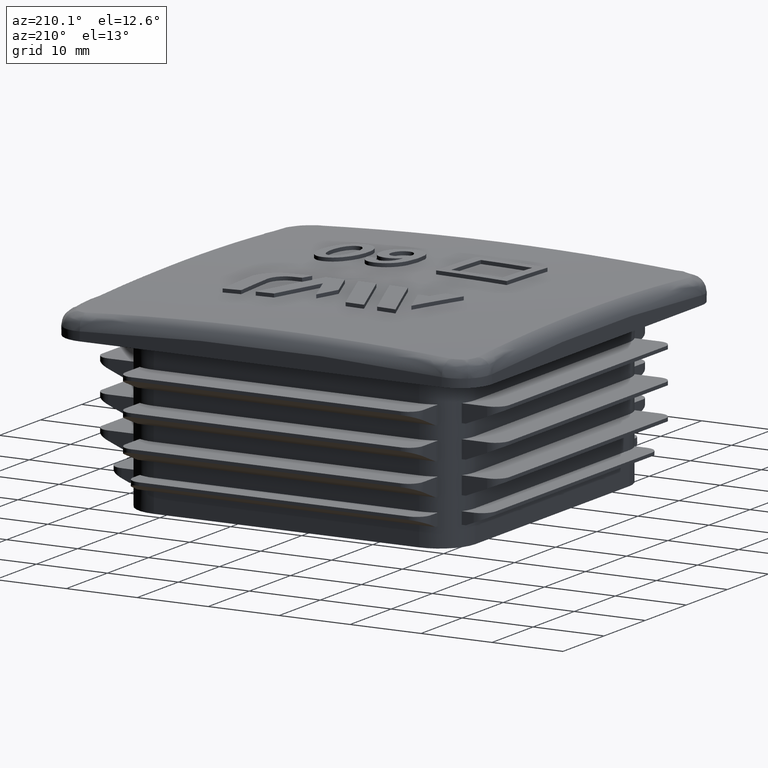
[diagram: clean part render]
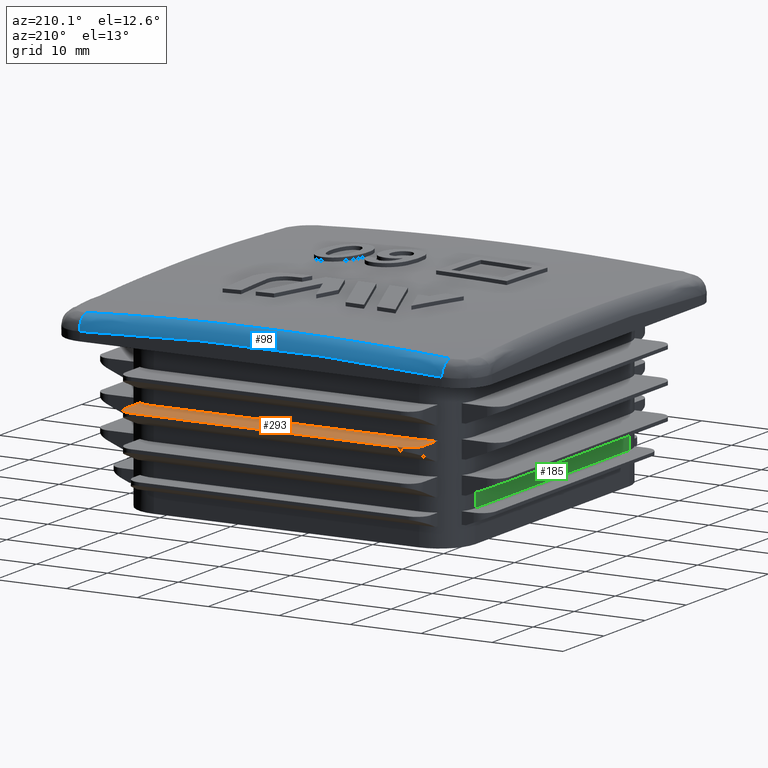
[diagram: same view with three faces highlighted in distinct colors, each labeled with its STEP entity id]
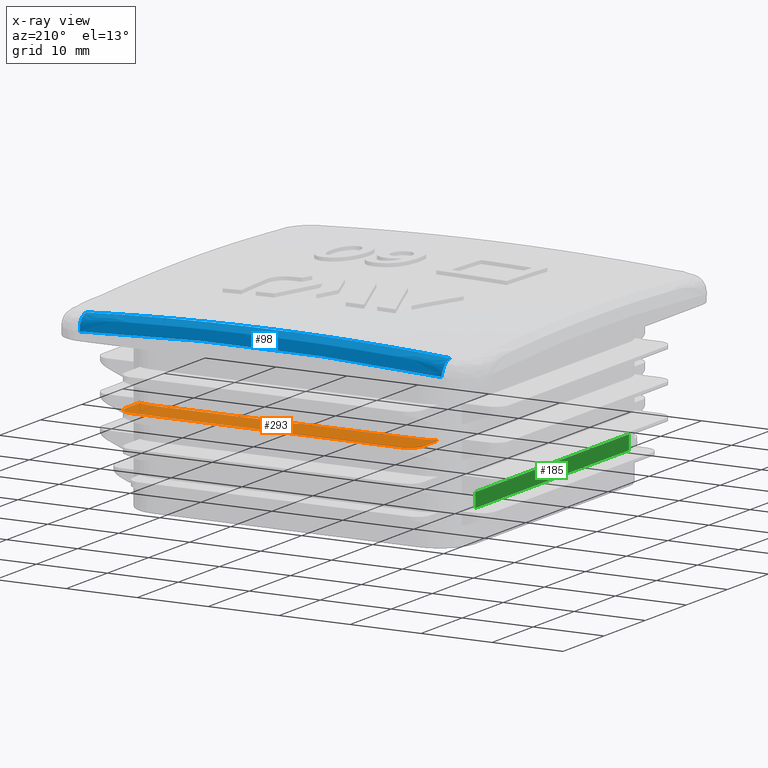
[diagram: x-ray of the same camera — body ghosted, the three highlighted faces saturated]
A machine part, auxiliary view with three faces highlighted in distinct colors.
The next image is the same camera in x-ray (body ghosted, the three faces saturated) — at least one of them is partly hidden behind the body in this view.
Their STEP definitions:

[orange] entity #293 — the highlighted planar face has unit normal (0, -0, -1).
#293 = ADVANCED_FACE( '', ( #812 ), #813, .F. );
#812 = FACE_OUTER_BOUND( '', #3512, .T. );
#813 = PLANE( '', #3513 );
#3512 = EDGE_LOOP( '', ( #5444, #5445, #5446, #5447, #5448, #5449, #5450, #5451 ) );
#3513 = AXIS2_PLACEMENT_3D( '', #5452, #5453, #5454 );
#5444 = ORIENTED_EDGE( '', *, *, #6381, .F. );
#5445 = ORIENTED_EDGE( '', *, *, #6400, .F. );
#5446 = ORIENTED_EDGE( '', *, *, #6235, .F. );
#5447 = ORIENTED_EDGE( '', *, *, #6585, .F. );
#5448 = ORIENTED_EDGE( '', *, *, #6586, .T. );
#5449 = ORIENTED_EDGE( '', *, *, #6583, .T. );
#5450 = ORIENTED_EDGE( '', *, *, #6587, .T. );
#5451 = ORIENTED_EDGE( '', *, *, #6588, .T. );
#5452 = CARTESIAN_POINT( '', ( 21.0000000000000, 28.7000000000000, 13.5000000000000 ) );
#5453 = DIRECTION( '', ( 3.69778549322349E-032, -6.12303176911189E-017, -1.00000000000000 ) );
#5454 = DIRECTION( '', ( 6.12303176911189E-017, 1.00000000000000, -6.12303176911189E-017 ) );
#6235 = EDGE_CURVE( '', #7184, #7186, #7187, .F. );
#6381 = EDGE_CURVE( '', #7444, #7446, #7447, .F. );
#6400 = EDGE_CURVE( '', #7186, #7444, #7471, .T. );
#6583 = EDGE_CURVE( '', #7750, #7748, #7751, .T. );
#6585 = EDGE_CURVE( '', #7753, #7184, #7754, .T. );
#6586 = EDGE_CURVE( '', #7753, #7750, #7755, .F. );
#6587 = EDGE_CURVE( '', #7748, #7756, #7757, .F. );
#6588 = EDGE_CURVE( '', #7756, #7446, #7758, .T. );
#7184 = VERTEX_POINT( '', #10660 );
#7186 = VERTEX_POINT( '', #10663 );
#7187 = CIRCLE( '', #10664, 5.00000000000000 );
#7444 = VERTEX_POINT( '', #11008 );
#7446 = VERTEX_POINT( '', #11011 );
#7447 = CIRCLE( '', #11012, 5.00000000000000 );
#7471 = LINE( '', #11051, #11052 );
#7748 = VERTEX_POINT( '', #11472 );
#7750 = VERTEX_POINT( '', #11475 );
#7751 = LINE( '', #11476, #11477 );
#7753 = VERTEX_POINT( '', #11480 );
#7754 = LINE( '', #11481, #11482 );
#7755 = CIRCLE( '', #11483, 2.00000000000000 );
#7756 = VERTEX_POINT( '', #11484 );
#7757 = CIRCLE( '', #11485, 2.00000000000000 );
#7758 = LINE( '', #11486, #11487 );
#10660 = CARTESIAN_POINT( '', ( 21.0000000000000, 23.1395945760846, 13.5000000000000 ) );
#10663 = CARTESIAN_POINT( '', ( 18.7000000000000, 23.7000000000000, 13.5000000000000 ) );
#10664 = AXIS2_PLACEMENT_3D( '', #12005, #12006, #12007 );
#11008 = CARTESIAN_POINT( '', ( -18.7000000000000, 23.7000000000000, 13.5000000000000 ) );
#11011 = CARTESIAN_POINT( '', ( -21.0000000000000, 23.1395945760846, 13.5000000000000 ) );
#11012 = AXIS2_PLACEMENT_3D( '', #12264, #12265, #12266 );
#11051 = CARTESIAN_POINT( '', ( 18.7000000000000, 23.7000000000000, 13.5000000000000 ) );
#11052 = VECTOR( '', #12291, 1000.00000000000 );
#11472 = CARTESIAN_POINT( '', ( -19.0000000000000, 28.7000000000000, 13.5000000000000 ) );
#11475 = CARTESIAN_POINT( '', ( 19.0000000000000, 28.7000000000000, 13.5000000000000 ) );
#11476 = CARTESIAN_POINT( '', ( 21.0000000000000, 28.7000000000000, 13.5000000000000 ) );
#11477 = VECTOR( '', #12550, 1000.00000000000 );
#11480 = CARTESIAN_POINT( '', ( 21.0000000000000, 26.7000000000000, 13.5000000000000 ) );
#11481 = CARTESIAN_POINT( '', ( 21.0000000000000, 28.7000000000000, 13.5000000000000 ) );
#11482 = VECTOR( '', #12552, 1000.00000000000 );
#11483 = AXIS2_PLACEMENT_3D( '', #12553, #12554, #12555 );
#11484 = CARTESIAN_POINT( '', ( -21.0000000000000, 26.7000000000000, 13.5000000000000 ) );
#11485 = AXIS2_PLACEMENT_3D( '', #12556, #12557, #12558 );
#11486 = CARTESIAN_POINT( '', ( -21.0000000000000, 28.7000000000000, 13.5000000000000 ) );
#11487 = VECTOR( '', #12559, 1000.00000000000 );
#12005 = CARTESIAN_POINT( '', ( 18.7000000000000, 18.7000000000000, 13.5000000000000 ) );
#12006 = DIRECTION( '', ( 3.69778549322349E-032, -6.12303176911189E-017, -1.00000000000000 ) );
#12007 = DIRECTION( '', ( 0.000000000000000, 1.00000000000000, -6.12303176911189E-017 ) );
#12264 = CARTESIAN_POINT( '', ( -18.7000000000000, 18.7000000000000, 13.5000000000000 ) );
#12265 = DIRECTION( '', ( 3.69778549322349E-032, -6.12303176911189E-017, -1.00000000000000 ) );
#12266 = DIRECTION( '', ( 0.000000000000000, 1.00000000000000, -6.12303176911189E-017 ) );
#12291 = DIRECTION( '', ( -1.00000000000000, 0.000000000000000, -3.69778549322349E-032 ) );
#12550 = DIRECTION( '', ( -1.00000000000000, 6.12303176911189E-017, -4.93038065763132E-032 ) );
#12552 = DIRECTION( '', ( -6.12303176911189E-017, -1.00000000000000, 6.12303176911189E-017 ) );
#12553 = CARTESIAN_POINT( '', ( 19.0000000000000, 26.7000000000000, 13.5000000000000 ) );
#12554 = DIRECTION( '', ( 3.69778549322349E-032, -6.12303176911189E-017, -1.00000000000000 ) );
#12555 = DIRECTION( '', ( -1.00000000000000, 6.12303176911189E-017, -4.07270067367903E-032 ) );
#12556 = CARTESIAN_POINT( '', ( -19.0000000000000, 26.7000000000000, 13.5000000000000 ) );
#12557 = DIRECTION( '', ( 3.69778549322349E-032, -6.12303176911189E-017, -1.00000000000000 ) );
#12558 = DIRECTION( '', ( -1.00000000000000, 6.12303176911189E-017, -4.07270067367903E-032 ) );
#12559 = DIRECTION( '', ( -6.12303176911189E-017, -1.00000000000000, 6.12303176911189E-017 ) );

[blue] entity #98 — the highlighted face is a freeform B-spline surface patch.
#98 = ADVANCED_FACE( '', ( #418 ), #419, .T. );
#418 = FACE_OUTER_BOUND( '', #1844, .T. );
#419 = ( B_SPLINE_SURFACE( 3, 2, ( ( #1846, #1847, #1848 ), ( #1849, #1850, #1851 ), ( #1852, #1853, #1854 ), ( #1855, #1856, #1857 ), ( #1858, #1859, #1860 ), ( #1861, #1862, #1863 ), ( #1864, #1865, #1866 ), ( #1867, #1868, #1869 ), ( #1870, #1871, #1872 ), ( #1873, #1874, #1875 ), ( #1876, #1877, #1878 ), ( #1879, #1880, #1881 ), ( #1882, #1883, #1884 ), ( #1885, #1886, #1887 ), ( #1888, #1889, #1890 ), ( #1891, #1892, #1893 ), ( #1894, #1895, #1896 ), ( #1897, #1898, #1899 ) ), .UNSPECIFIED., .F., .F., .F. )B_SPLINE_SURFACE_WITH_KNOTS( ( 4, 2, 2, 2, 2, 2, 2, 2, 4 ), ( 3, 3 ), ( 0.000000000000000, 0.0127516681654336, 0.0191275022481504, 0.0255033363308671, 0.0318791704135839, 0.0350670874549423, 0.0366610459756215, 0.0382550044963007, 0.0510066726617343 ), ( 0.000000000000000, 1.00000000000000 ), .UNSPECIFIED. )RATIONAL_B_SPLINE_SURFACE( ( ( 1.00000000000000, 0.731172694271200, 1.00000000000000 ), ( 1.00000000000000, 0.731144039910534, 1.00000000000000 ), ( 1.00000000000000, 0.731111019358223, 1.00000000000000 ), ( 1.00000000000000, 0.731070365415397, 1.00000000000000 ), ( 1.00000000000000, 0.731058451690021, 1.00000000000000 ), ( 1.00000000000000, 0.731041769660057, 1.00000000000000 ), ( 1.00000000000000, 0.731037092239819, 1.00000000000000 ), ( 1.00000000000000, 0.731037110059666, 1.00000000000000 ), ( 1.00000000000000, 0.731041734492430, 1.00000000000000 ), ( 1.00000000000000, 0.731054233935783, 1.00000000000000 ), ( 1.00000000000000, 0.731059292770324, 1.00000000000000 ), ( 1.00000000000000, 0.731067867405192, 1.00000000000000 ), ( 1.00000000000000, 0.731070889402010, 1.00000000000000 ), ( 1.00000000000000, 0.731077199196118, 1.00000000000000 ), ( 1.00000000000000, 0.731080487015900, 1.00000000000000 ), ( 1.00000000000000, 0.731111000049096, 1.00000000000000 ), ( 1.00000000000000, 0.731144042513623, 1.00000000000000 ), ( 1.00000000000000, 0.731172694271200, 1.00000000000000 ) ) )BOUNDED_SURFACE(  )REPRESENTATION_ITEM( '' )GEOMETRIC_REPRESENTATION_ITEM(  )SURFACE(  ) );
#1844 = EDGE_LOOP( '', ( #3858, #3859, #3860, #3861 ) );
#1846 = CARTESIAN_POINT( '', ( 25.5000000000000, 30.0000000000000, 23.2519481302610 ) );
#1847 = CARTESIAN_POINT( '', ( 25.6179282470970, 30.0000000000000, 25.1142406874974 ) );
#1848 = CARTESIAN_POINT( '', ( 25.6260920679456, 28.1384540353912, 25.2431616473116 ) );
#1849 = CARTESIAN_POINT( '', ( 21.2532250241171, 30.0000000000000, 23.5208718966010 ) );
#1850 = CARTESIAN_POINT( '', ( 21.3513770285290, 30.0000000000074, 25.3845763201894 ) );
#1851 = CARTESIAN_POINT( '', ( 21.3581615564441, 28.1382841886425, 25.5134368816863 ) );
#1852 = CARTESIAN_POINT( '', ( 17.0053563830041, 30.0000000000000, 23.7219159219013 ) );
#1853 = CARTESIAN_POINT( '', ( 17.0837872666986, 30.0000000000000, 25.5867317510234 ) );
#1854 = CARTESIAN_POINT( '', ( 17.0892010990546, 28.1380932875678, 25.7154910861116 ) );
#1855 = CARTESIAN_POINT( '', ( 10.6319305441499, 30.0000000000000, 23.9227501991149 ) );
#1856 = CARTESIAN_POINT( '', ( 10.6808952586641, 30.0000000000000, 25.7887176151152 ) );
#1857 = CARTESIAN_POINT( '', ( 10.6842698974205, 28.1378555160209, 25.9173345808503 ) );
#1858 = CARTESIAN_POINT( '', ( 8.50718480193019, 30.0000000000000, 23.9729077067543 ) );
#1859 = CARTESIAN_POINT( '', ( 8.54634656978358, 29.9999999999963, 25.8391717528111 ) );
#1860 = CARTESIAN_POINT( '', ( 8.54904429952654, 28.1377858388669, 25.9677441362328 ) );
#1861 = CARTESIAN_POINT( '', ( 4.25715467183849, 30.0000000000000, 24.0397897070843 ) );
#1862 = CARTESIAN_POINT( '', ( 4.27673735163617, 30.0000000000037, 25.9064533715442 ) );
#1863 = CARTESIAN_POINT( '', ( 4.27808526556846, 28.1376882756770, 26.0349622270503 ) );
#1864 = CARTESIAN_POINT( '', ( 2.13187031720483, 30.0000000000000, 24.0565162632592 ) );
#1865 = CARTESIAN_POINT( '', ( 2.14167660769356, 30.0000000000000, 25.9232823683908 ) );
#1866 = CARTESIAN_POINT( '', ( 2.14235157943957, 28.1376610251414, 26.0517728363066 ) );
#1867 = CARTESIAN_POINT( '', ( -2.11923629541993, 30.0000000000000, 24.0565824343544 ) );
#1868 = CARTESIAN_POINT( '', ( -2.12898447126326, 30.0000000000000, 25.9233489416025 ) );
#1869 = CARTESIAN_POINT( '', ( -2.12965544294996, 28.1376609209180, 26.0518393398158 ) );
#1870 = CARTESIAN_POINT( '', ( -4.24505855309554, 30.0000000000000, 24.0399220686347 ) );
#1871 = CARTESIAN_POINT( '', ( -4.26458555638759, 29.9999999999963, 25.9065865350022 ) );
#1872 = CARTESIAN_POINT( '', ( -4.26592963542106, 28.1376880699940, 26.0350952536664 ) );
#1873 = CARTESIAN_POINT( '', ( -7.43419648527324, 30.0000000000000, 23.9898219128120 ) );
#1874 = CARTESIAN_POINT( '', ( -7.46841517428398, 30.0000000000018, 25.8561870153761 ) );
#1875 = CARTESIAN_POINT( '', ( -7.47077211796527, 28.1377611717558, 25.9847433383432 ) );
#1876 = CARTESIAN_POINT( '', ( -8.49730990404276, 30.0000000000000, 23.9689358649071 ) );
#1877 = CARTESIAN_POINT( '', ( -8.53642964616618, 29.9999999999981, 25.8351769462842 ) );
#1878 = CARTESIAN_POINT( '', ( -8.53912473362000, 28.1377907580531, 25.9637523354224 ) );
#1879 = CARTESIAN_POINT( '', ( -10.0920814588272, 30.0000000000000, 23.9313113775605 ) );
#1880 = CARTESIAN_POINT( '', ( -10.1385600393185, 30.0000000000009, 25.7973318055454 ) );
#1881 = CARTESIAN_POINT( '', ( -10.1417633436607, 28.1378409069766, 25.9259387802639 ) );
#1882 = CARTESIAN_POINT( '', ( -10.6236888822289, 30.0000000000000, 23.9177206025378 ) );
#1883 = CARTESIAN_POINT( '', ( -10.6726216091529, 29.9999999999991, 25.7836617120587 ) );
#1884 = CARTESIAN_POINT( '', ( -10.6759944846551, 28.1378585812833, 25.9122797098858 ) );
#1885 = CARTESIAN_POINT( '', ( -11.6869375903135, 30.0000000000000, 23.8884373278455 ) );
#1886 = CARTESIAN_POINT( '', ( -11.7407811534974, 30.0000000000009, 25.7542085675722 ) );
#1887 = CARTESIAN_POINT( '', ( -11.7444935229662, 28.1378954846990, 25.8828492830905 ) );
#1888 = CARTESIAN_POINT( '', ( -12.2185951440004, 30.0000000000000, 23.8727443068822 ) );
#1889 = CARTESIAN_POINT( '', ( -12.2748954719897, 30.0000000000000, 25.7384249927180 ) );
#1890 = CARTESIAN_POINT( '', ( -12.2787777694359, 28.1379147139367, 25.8670774027253 ) );
#1891 = CARTESIAN_POINT( '', ( -17.0033259722367, 30.0000000000000, 23.7220450085220 ) );
#1892 = CARTESIAN_POINT( '', ( -17.0817473927733, 30.0000000000000, 25.5868615428453 ) );
#1893 = CARTESIAN_POINT( '', ( -17.0871605646275, 28.1380931746204, 25.7156208213191 ) );
#1894 = CARTESIAN_POINT( '', ( -21.2532569324562, 30.0000000000000, 23.5208698762529 ) );
#1895 = CARTESIAN_POINT( '', ( -21.3514090874672, 30.0000000000000, 25.3845742891206 ) );
#1896 = CARTESIAN_POINT( '', ( -21.3581936251326, 28.1382841899172, 25.5134348508726 ) );
#1897 = CARTESIAN_POINT( '', ( -25.5000000000000, 30.0000000000000, 23.2519481302610 ) );
#1898 = CARTESIAN_POINT( '', ( -25.6179282470970, 30.0000000000000, 25.1142406874974 ) );
#1899 = CARTESIAN_POINT( '', ( -25.6260920679456, 28.1384540353912, 25.2431616473116 ) );
#3858 = ORIENTED_EDGE( '', *, *, #6089, .T. );
#3859 = ORIENTED_EDGE( '', *, *, #6090, .F. );
#3860 = ORIENTED_EDGE( '', *, *, #6084, .F. );
#3861 = ORIENTED_EDGE( '', *, *, #6012, .F. );
#6012 = EDGE_CURVE( '', #6812, #6814, #6815, .T. );
#6084 = EDGE_CURVE( '', #6814, #6942, #6947, .T. );
#6089 = EDGE_CURVE( '', #6812, #6955, #6956, .T. );
#6090 = EDGE_CURVE( '', #6942, #6955, #6957, .T. );
#6812 = VERTEX_POINT( '', #8866 );
#6814 = VERTEX_POINT( '', #8888 );
#6815 = B_SPLINE_CURVE_WITH_KNOTS( '', 3, ( #8889, #8890, #8891, #8892, #8893, #8894, #8895, #8896, #8897, #8898, #8899, #8900, #8901, #8902, #8903, #8904 ), .UNSPECIFIED., .F., .F., ( 4, 2, 2, 1, 2, 1, 1, 2, 1, 4 ), ( 0.000000000000000, 0.0128147225244875, 0.0192220837867312, 0.0256294450489750, 0.0320368063112187, 0.0352404869423406, 0.0368423272579015, 0.0376432474156820, 0.0384441675734624, 0.0512588900979499 ), .UNSPECIFIED. );
#6942 = VERTEX_POINT( '', #9487 );
#6947 = CIRCLE( '', #9562, 2.00000000000000 );
#6955 = VERTEX_POINT( '', #9639 );
#6956 = CIRCLE( '', #9640, 2.00000000000000 );
#6957 = B_SPLINE_CURVE_WITH_KNOTS( '', 3, ( #9641, #9642, #9643, #9644, #9645, #9646, #9647, #9648, #9649, #9650, #9651, #9652, #9653, #9654, #9655, #9656, #9657 ), .UNSPECIFIED., .F., .F., ( 4, 2, 2, 1, 1, 2, 1, 2, 2, 4 ), ( 0.000000000000000, 0.0127640686445034, 0.0135618229347849, 0.0143595772250664, 0.0159550858056293, 0.0191461029667551, 0.0255281372890068, 0.0319101716112585, 0.0382922059335102, 0.0510562745780136 ), .UNSPECIFIED. );
#8866 = CARTESIAN_POINT( '', ( 25.6260920679456, 28.1384540353912, 25.2431616473116 ) );
#8888 = CARTESIAN_POINT( '', ( -25.6260920679456, 28.1384540353912, 25.2431616473116 ) );
#8889 = CARTESIAN_POINT( '', ( 25.6260920679456, 28.1384540353912, 25.2431616473116 ) );
#8890 = CARTESIAN_POINT( '', ( 21.3583181193034, 28.1382841948566, 25.5134269670313 ) );
#8891 = CARTESIAN_POINT( '', ( 17.0894451095232, 28.1380932980461, 25.7154808900933 ) );
#8892 = CARTESIAN_POINT( '', ( 10.6845044642367, 28.1378555240189, 25.9173284418270 ) );
#8893 = CARTESIAN_POINT( '', ( 8.54925241429953, 28.1377858446911, 25.9677399956725 ) );
#8894 = CARTESIAN_POINT( '', ( 4.27820690020927, 28.1376882773854, 26.0349611778135 ) );
#8895 = CARTESIAN_POINT( '', ( 0.00662003669304602, 28.1376337701655, 26.0685844565775 ) );
#8896 = CARTESIAN_POINT( '', ( -4.26604819970975, 28.1376880716483, 26.0350942419067 ) );
#8897 = CARTESIAN_POINT( '', ( -7.47095600344943, 28.1377611764754, 25.9847400237198 ) );
#8898 = CARTESIAN_POINT( '', ( -9.07351158731195, 28.1378055575377, 25.9532521997316 ) );
#8899 = CARTESIAN_POINT( '', ( -10.9433381728090, 28.1378674262144, 25.9054440498394 ) );
#8900 = CARTESIAN_POINT( '', ( -11.7447307122334, 28.1378956873052, 25.8825785331584 ) );
#8901 = CARTESIAN_POINT( '', ( -12.2790009203565, 28.1379148722779, 25.8668063757644 ) );
#8902 = CARTESIAN_POINT( '', ( -16.8204695938016, 28.1380812468788, 25.7282472768414 ) );
#8903 = CARTESIAN_POINT( '', ( -21.3583497221266, 28.1382841961143, 25.5134249657194 ) );
#8904 = CARTESIAN_POINT( '', ( -25.6260920679456, 28.1384540353912, 25.2431616473116 ) );
#9487 = CARTESIAN_POINT( '', ( -25.5000000000000, 30.0000000000000, 23.2519481302609 ) );
#9562 = AXIS2_PLACEMENT_3D( '', #11847, #11848, #11849 );
#9639 = CARTESIAN_POINT( '', ( 25.5000000000000, 30.0000000000000, 23.2519481302610 ) );
#9640 = AXIS2_PLACEMENT_3D( '', #11854, #11855, #11856 );
#9641 = CARTESIAN_POINT( '', ( -25.5000000000000, 30.0000000000000, 23.2519481302609 ) );
#9642 = CARTESIAN_POINT( '', ( -21.2532569283178, 30.0000000000000, 23.5208698764005 ) );
#9643 = CARTESIAN_POINT( '', ( -17.0033259722350, 30.0000000000000, 23.7220450083978 ) );
#9644 = CARTESIAN_POINT( '', ( -12.4844135233470, 30.0000000000000, 23.8643721236477 ) );
#9645 = CARTESIAN_POINT( '', ( -12.2185831145045, 30.0000000000000, 23.8724816877677 ) );
#9646 = CARTESIAN_POINT( '', ( -11.6869418230044, 30.0000000000000, 23.8881746104175 ) );
#9647 = CARTESIAN_POINT( '', ( -10.8894925939288, 30.0000000000000, 23.9109252150091 ) );
#9648 = CARTESIAN_POINT( '', ( -9.02886661342401, 30.0000000000000, 23.9584928409782 ) );
#9649 = CARTESIAN_POINT( '', ( -7.43419648527164, 30.0000000000000, 23.9898219128375 ) );
#9650 = CARTESIAN_POINT( '', ( -4.24505855309868, 30.0000000000000, 24.0399220685839 ) );
#9651 = CARTESIAN_POINT( '', ( 0.00658596257288851, 30.0000000000000, 24.0732428195212 ) );
#9652 = CARTESIAN_POINT( '', ( 4.25715467183690, 30.0000000000000, 24.0397897071013 ) );
#9653 = CARTESIAN_POINT( '', ( 8.50718480193178, 30.0000000000000, 23.9729077067375 ) );
#9654 = CARTESIAN_POINT( '', ( 10.6319305441500, 30.0000000000000, 23.9227501991318 ) );
#9655 = CARTESIAN_POINT( '', ( 17.0053563830039, 30.0000000000000, 23.7219159218672 ) );
#9656 = CARTESIAN_POINT( '', ( 21.2532250032319, 30.0000000000000, 23.5208718980321 ) );
#9657 = CARTESIAN_POINT( '', ( 25.5000000000000, 30.0000000000000, 23.2519481302610 ) );
#11847 = CARTESIAN_POINT( '', ( -25.5000000000000, 28.0000000000000, 23.2519481302609 ) );
#11848 = DIRECTION( '', ( -0.998001030614874, 1.37038057584613E-017, -0.0631976494155406 ) );
#11849 = DIRECTION( '', ( -0.0631976494155406, 0.000000000000000, 0.998001030614874 ) );
#11854 = CARTESIAN_POINT( '', ( 25.5000000000000, 28.0000000000000, 23.2519481302610 ) );
#11855 = DIRECTION( '', ( -0.998001030614874, -1.37038057584613E-017, 0.0631976494155406 ) );
#11856 = DIRECTION( '', ( 0.0631976494155406, 0.000000000000000, 0.998001030614874 ) );

[green] entity #185 — the highlighted planar face has unit normal (-1, 0, 0).
#185 = ADVANCED_FACE( '', ( #596 ), #597, .T. );
#596 = FACE_OUTER_BOUND( '', #3296, .T. );
#597 = PLANE( '', #3297 );
#3296 = EDGE_LOOP( '', ( #4541, #4542, #4543, #4544 ) );
#3297 = AXIS2_PLACEMENT_3D( '', #4545, #4546, #4547 );
#4541 = ORIENTED_EDGE( '', *, *, #6316, .F. );
#4542 = ORIENTED_EDGE( '', *, *, #6317, .T. );
#4543 = ORIENTED_EDGE( '', *, *, #6318, .T. );
#4544 = ORIENTED_EDGE( '', *, *, #6319, .T. );
#4545 = CARTESIAN_POINT( '', ( -23.7000000000000, 18.7000000000000, 3.46944695195361E-015 ) );
#4546 = DIRECTION( '', ( -1.00000000000000, 0.000000000000000, 0.000000000000000 ) );
#4547 = DIRECTION( '', ( 0.000000000000000, 1.00000000000000, 0.000000000000000 ) );
#6316 = EDGE_CURVE( '', #7323, #7324, #7325, .T. );
#6317 = EDGE_CURVE( '', #7323, #7326, #7327, .T. );
#6318 = EDGE_CURVE( '', #7326, #7328, #7329, .T. );
#6319 = EDGE_CURVE( '', #7328, #7324, #7330, .T. );
#7323 = VERTEX_POINT( '', #10851 );
#7324 = VERTEX_POINT( '', #10852 );
#7325 = LINE( '', #10853, #10854 );
#7326 = VERTEX_POINT( '', #10855 );
#7327 = LINE( '', #10856, #10857 );
#7328 = VERTEX_POINT( '', #10858 );
#7329 = LINE( '', #10859, #10860 );
#7330 = LINE( '', #10861, #10862 );
#10851 = CARTESIAN_POINT( '', ( -23.7000000000000, 18.7000000000000, 4.50000000000000 ) );
#10852 = CARTESIAN_POINT( '', ( -23.7000000000001, 18.7000000000000, 6.50000000000002 ) );
#10853 = CARTESIAN_POINT( '', ( -23.7000000000000, 18.7000000000000, 3.46944695195361E-015 ) );
#10854 = VECTOR( '', #12143, 1000.00000000000 );
#10855 = CARTESIAN_POINT( '', ( -23.7000000000000, -18.7000000000000, 4.50000000000000 ) );
#10856 = CARTESIAN_POINT( '', ( -23.7000000000000, 18.7000000000000, 4.50000000000000 ) );
#10857 = VECTOR( '', #12144, 1000.00000000000 );
#10858 = CARTESIAN_POINT( '', ( -23.7000000000001, -18.7000000000000, 6.50000000000002 ) );
#10859 = CARTESIAN_POINT( '', ( -23.7000000000000, -18.7000000000000, 3.46944695195361E-015 ) );
#10860 = VECTOR( '', #12145, 1000.00000000000 );
#10861 = CARTESIAN_POINT( '', ( -23.7000000000000, 18.7000000000000, 6.49999999999999 ) );
#10862 = VECTOR( '', #12146, 1000.00000000000 );
#12143 = DIRECTION( '', ( 0.000000000000000, 0.000000000000000, 1.00000000000000 ) );
#12144 = DIRECTION( '', ( 0.000000000000000, -1.00000000000000, 6.12303176911188E-017 ) );
#12145 = DIRECTION( '', ( 0.000000000000000, 0.000000000000000, 1.00000000000000 ) );
#12146 = DIRECTION( '', ( 0.000000000000000, 1.00000000000000, -1.17530093642580E-017 ) );